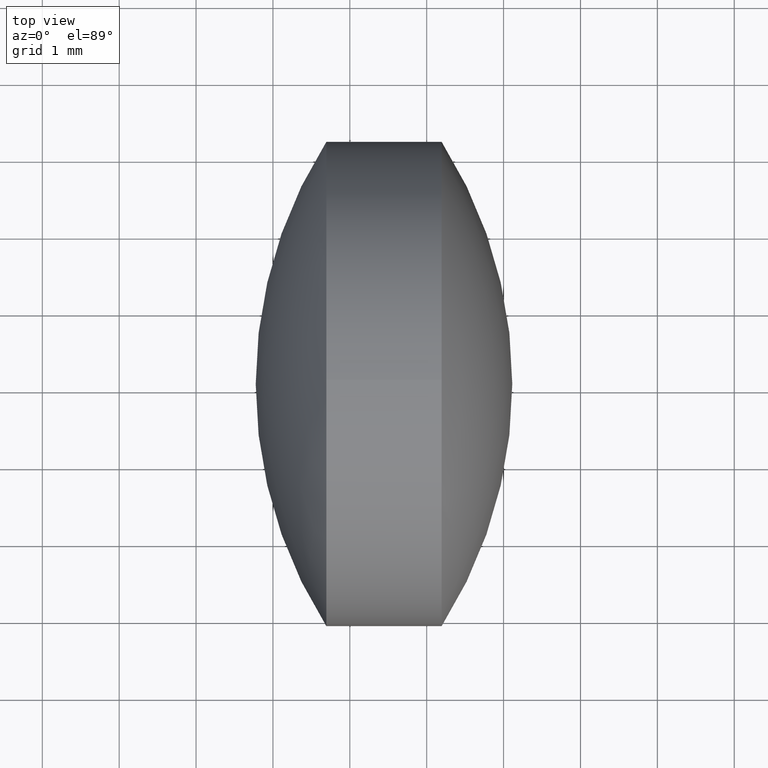
[diagram: clean part render]
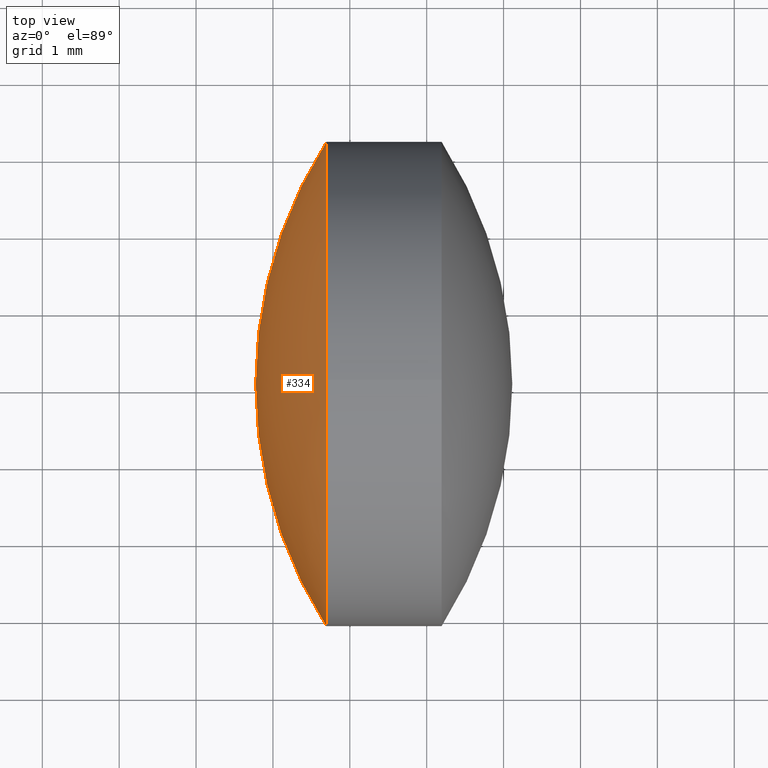
[diagram: same view with one face highlighted and labeled with its STEP entity id]
A machine part, top view. The second image highlights one B-rep face of the part: STEP entity #334.
In plain terms, the highlighted spherical surface has radius 5.8596 mm.
Its self-contained STEP definition (entity closure, byte-faithful):
#3 = EDGE_CURVE ( 'NONE', #273, #116, #97, .T. ) ;
#6 = ORIENTED_EDGE ( 'NONE', *, *, #75, .T. ) ;
#16 = CARTESIAN_POINT ( 'NONE',  ( 20.69444092659728800, 12.05837547940993200, 3.150012600050391900 ) ) ;
#21 = DIRECTION ( 'NONE',  ( 1.000000000000000000, 0.0000000000000000000, 0.0000000000000000000 ) ) ;
#50 = DIRECTION ( 'NONE',  ( -1.000000000000000000, -0.0000000000000000000, -0.0000000000000000000 ) ) ;
#51 = CARTESIAN_POINT ( 'NONE',  ( 25.63531401395296800, 12.05837547940992500, 0.0000000000000000000 ) ) ;
#65 = VERTEX_POINT ( 'NONE', #68 ) ;
#68 = CARTESIAN_POINT ( 'NONE',  ( 20.69444092659728800, 8.908362879359534900, -3.857652847925542500E-016 ) ) ;
#71 = DIRECTION ( 'NONE',  ( -0.0000000000000000000, 0.0000000000000000000, -1.000000000000000000 ) ) ;
#75 = EDGE_CURVE ( 'NONE', #65, #273, #304, .T. ) ;
#89 = CARTESIAN_POINT ( 'NONE',  ( 20.69444092659728800, 12.05837547940993200, 0.0000000000000000000 ) ) ;
#92 = AXIS2_PLACEMENT_3D ( 'NONE', #51, #98, #250 ) ;
#97 = CIRCLE ( 'NONE', #219, 3.150012600050391900 ) ;
#98 = DIRECTION ( 'NONE',  ( 0.0000000000000000000, 1.224646799147353200E-016, -1.000000000000000000 ) ) ;
#103 = AXIS2_PLACEMENT_3D ( 'NONE', #275, #50, #270 ) ;
#110 = FACE_OUTER_BOUND ( 'NONE', #182, .T. ) ;
#116 = VERTEX_POINT ( 'NONE', #166 ) ;
#118 = DIRECTION ( 'NONE',  ( -0.0000000000000000000, 0.0000000000000000000, 1.000000000000000000 ) ) ;
#122 = DIRECTION ( 'NONE',  ( 0.0000000000000000000, 1.000000000000000000, 0.0000000000000000000 ) ) ;
#123 = AXIS2_PLACEMENT_3D ( 'NONE', #254, #118, #21 ) ;
#129 = AXIS2_PLACEMENT_3D ( 'NONE', #279, #71, #122 ) ;
#144 = CARTESIAN_POINT ( 'NONE',  ( 19.77572305162190200, 12.05837547940992500, 0.0000000000000000000 ) ) ;
#166 = CARTESIAN_POINT ( 'NONE',  ( 20.69444092659728800, 15.20838807946032200, 0.0000000000000000000 ) ) ;
#182 = EDGE_LOOP ( 'NONE', ( #243, #6, #193, #238 ) ) ;
#193 = ORIENTED_EDGE ( 'NONE', *, *, #3, .T. ) ;
#202 = CIRCLE ( 'NONE', #123, 5.859590962331063600 ) ;
#219 = AXIS2_PLACEMENT_3D ( 'NONE', #89, #244, #299 ) ;
#238 = ORIENTED_EDGE ( 'NONE', *, *, #317, .T. ) ;
#243 = ORIENTED_EDGE ( 'NONE', *, *, #276, .F. ) ;
#244 = DIRECTION ( 'NONE',  ( -1.000000000000000000, -0.0000000000000000000, -0.0000000000000000000 ) ) ;
#250 = DIRECTION ( 'NONE',  ( 0.0000000000000000000, 1.000000000000000000, 1.224646799147352700E-016 ) ) ;
#254 = CARTESIAN_POINT ( 'NONE',  ( 25.63531401395296800, 12.05837547940992500, 0.0000000000000000000 ) ) ;
#268 = CIRCLE ( 'NONE', #92, 5.859590962331067100 ) ;
#270 = DIRECTION ( 'NONE',  ( 0.0000000000000000000, 0.0000000000000000000, 1.000000000000000000 ) ) ;
#273 = VERTEX_POINT ( 'NONE', #16 ) ;
#275 = CARTESIAN_POINT ( 'NONE',  ( 20.69444092659728800, 12.05837547940993200, 0.0000000000000000000 ) ) ;
#276 = EDGE_CURVE ( 'NONE', #65, #320, #268, .T. ) ;
#279 = CARTESIAN_POINT ( 'NONE',  ( 25.63531401395296800, 12.05837547940992500, 0.0000000000000000000 ) ) ;
#287 = SPHERICAL_SURFACE ( 'NONE', #129, 5.859590962331065400 ) ;
#299 = DIRECTION ( 'NONE',  ( 0.0000000000000000000, 0.0000000000000000000, 1.000000000000000000 ) ) ;
#304 = CIRCLE ( 'NONE', #103, 3.150012600050391900 ) ;
#317 = EDGE_CURVE ( 'NONE', #116, #320, #202, .T. ) ;
#320 = VERTEX_POINT ( 'NONE', #144 ) ;
#334 = ADVANCED_FACE ( 'NONE', ( #110 ), #287, .T. ) ;